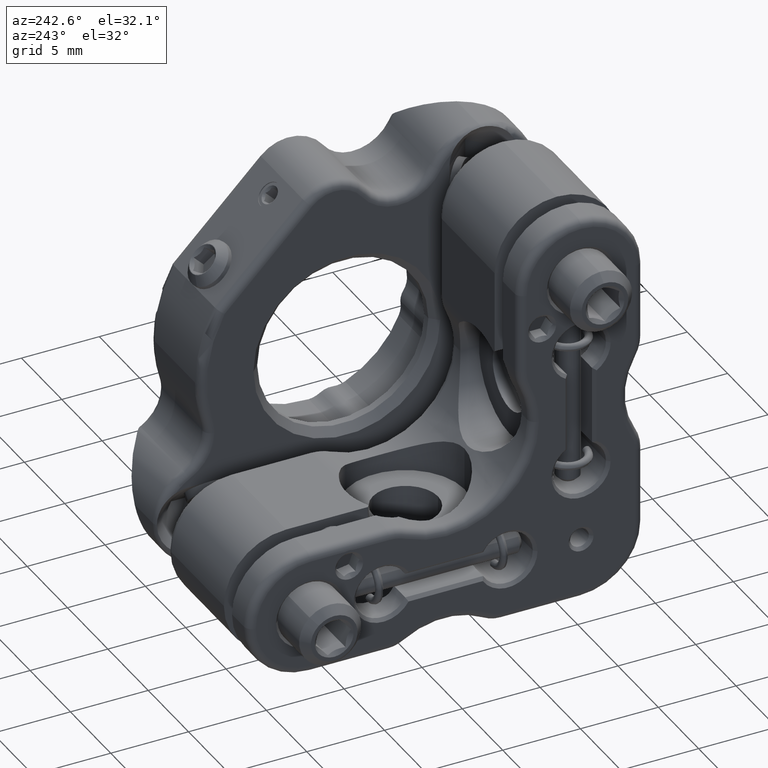
[diagram: clean part render]
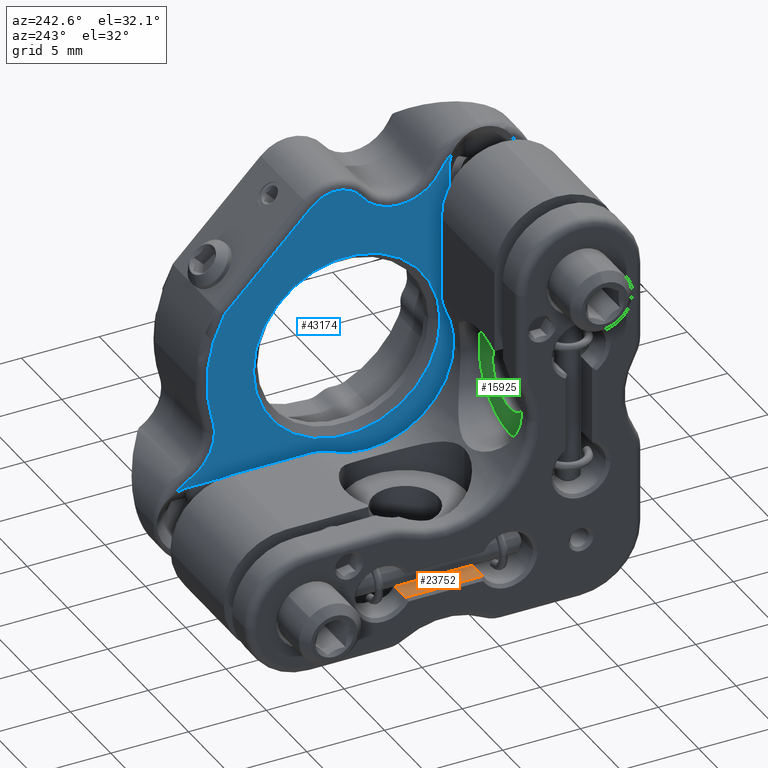
[diagram: same view with three faces highlighted in distinct colors, each labeled with its STEP entity id]
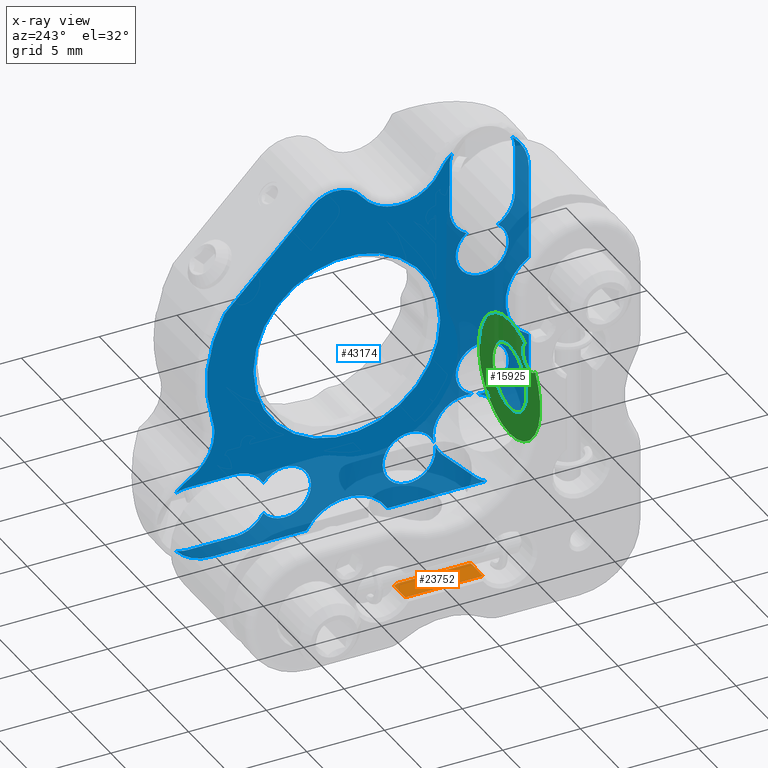
[diagram: x-ray of the same camera — body ghosted, the three highlighted faces saturated]
A machine part, auxiliary view with three faces highlighted in distinct colors.
The next image is the same camera in x-ray (body ghosted, the three faces saturated) — at least one of them is partly hidden behind the body in this view.
Their STEP definitions:

[orange] entity #23752 — the highlighted planar face has unit normal (0, 0, 1).
#1083 = VERTEX_POINT ( 'NONE', #17699 ) ;
#1209 = CARTESIAN_POINT ( 'NONE',  ( -18.29999999999999716, 12.69999999999998685, -3.894749130262324499 ) ) ;
#2151 = EDGE_CURVE ( 'NONE', #1083, #15910, #10487, .T. ) ;
#2965 = VECTOR ( 'NONE', #7365, 1000.000000000000000 ) ;
#4188 = DIRECTION ( 'NONE',  ( -1.000000000000000000, 0.0000000000000000000, 0.0000000000000000000 ) ) ;
#4244 = ORIENTED_EDGE ( 'NONE', *, *, #34498, .T. ) ;
#6408 = EDGE_CURVE ( 'NONE', #8164, #24269, #20308, .T. ) ;
#7134 = CARTESIAN_POINT ( 'NONE',  ( -18.29999999999999716, 15.19999999999994245, -3.894749130262326275 ) ) ;
#7267 = ORIENTED_EDGE ( 'NONE', *, *, #2151, .T. ) ;
#7365 = DIRECTION ( 'NONE',  ( 0.0000000000000000000, 1.000000000000000000, -6.033280553076514530E-16 ) ) ;
#7694 = CARTESIAN_POINT ( 'NONE',  ( -16.00000000000000000, 15.19999999999994245, -3.894749130262326275 ) ) ;
#8164 = VERTEX_POINT ( 'NONE', #15592 ) ;
#8959 = FACE_OUTER_BOUND ( 'NONE', #22383, .T. ) ;
#10142 = CARTESIAN_POINT ( 'NONE',  ( -16.75000000000000000, 14.90250628144670308, -3.894749130262326275 ) ) ;
#10477 = DIRECTION ( 'NONE',  ( -1.000000000000000000, 0.0000000000000000000, 0.0000000000000000000 ) ) ;
#10487 = LINE ( 'NONE', #7694, #31275 ) ;
#11147 = DIRECTION ( 'NONE',  ( 0.0000000000000000000, -1.000000000000000000, 6.033280553076514530E-16 ) ) ;
#13027 = VECTOR ( 'NONE', #4188, 1000.000000000000000 ) ;
#14611 = VERTEX_POINT ( 'NONE', #10142 ) ;
#15592 = CARTESIAN_POINT ( 'NONE',  ( -16.75000000000000000, 10.20000000000004015, -3.894749130262322723 ) ) ;
#15619 = LINE ( 'NONE', #1209, #39986 ) ;
#15910 = VERTEX_POINT ( 'NONE', #7134 ) ;
#16468 = CARTESIAN_POINT ( 'NONE',  ( -16.00000000000000000, 15.40000000000001457, -3.894749130262326275 ) ) ;
#16977 = CARTESIAN_POINT ( 'NONE',  ( -16.75000000000000000, 15.19999999999994245, -3.894749130262326275 ) ) ;
#17079 = AXIS2_PLACEMENT_3D ( 'NONE', #16468, #39661, #39516 ) ;
#17699 = CARTESIAN_POINT ( 'NONE',  ( -16.87749643873919680, 15.19999999999994245, -3.894749130262326275 ) ) ;
#19145 = CIRCLE ( 'NONE', #17079, 0.9000000000000014655 ) ;
#20308 = LINE ( 'NONE', #41237, #13027 ) ;
#20567 = CARTESIAN_POINT ( 'NONE',  ( -16.00000000000000000, 12.69999999999998685, -3.894749130262324499 ) ) ;
#21001 = DIRECTION ( 'NONE',  ( 0.0000000000000000000, 6.033280553076514530E-16, 1.000000000000000000 ) ) ;
#22383 = EDGE_LOOP ( 'NONE', ( #7267, #34028, #35099, #4244, #34453 ) ) ;
#22608 = AXIS2_PLACEMENT_3D ( 'NONE', #20567, #21001, #24316 ) ;
#23752 = ADVANCED_FACE ( 'NONE', ( #8959 ), #40422, .T. ) ;
#24269 = VERTEX_POINT ( 'NONE', #28572 ) ;
#24316 = DIRECTION ( 'NONE',  ( 0.0000000000000000000, 1.000000000000000000, -6.033280553076514530E-16 ) ) ;
#28572 = CARTESIAN_POINT ( 'NONE',  ( -18.29999999999999716, 10.20000000000004015, -3.894749130262322723 ) ) ;
#29525 = LINE ( 'NONE', #16977, #2965 ) ;
#31275 = VECTOR ( 'NONE', #10477, 1000.000000000000000 ) ;
#32125 = EDGE_CURVE ( 'NONE', #15910, #24269, #15619, .T. ) ;
#34028 = ORIENTED_EDGE ( 'NONE', *, *, #32125, .T. ) ;
#34453 = ORIENTED_EDGE ( 'NONE', *, *, #34807, .T. ) ;
#34498 = EDGE_CURVE ( 'NONE', #8164, #14611, #29525, .T. ) ;
#34807 = EDGE_CURVE ( 'NONE', #14611, #1083, #19145, .T. ) ;
#35099 = ORIENTED_EDGE ( 'NONE', *, *, #6408, .F. ) ;
#39516 = DIRECTION ( 'NONE',  ( 0.0000000000000000000, 1.000000000000000000, -4.818676322157789486E-16 ) ) ;
#39661 = DIRECTION ( 'NONE',  ( -0.0000000000000000000, -6.033280553076514530E-16, -1.000000000000000000 ) ) ;
#39986 = VECTOR ( 'NONE', #11147, 1000.000000000000000 ) ;
#40422 = PLANE ( 'NONE',  #22608 ) ;
#41237 = CARTESIAN_POINT ( 'NONE',  ( -16.00000000000000000, 10.20000000000004015, -3.894749130262322723 ) ) ;

[blue] entity #43174 — the highlighted planar face has unit normal (-1, -0, -0).
#38 = CARTESIAN_POINT ( 'NONE',  ( -6.236038969321080039, 3.999999999999989786, -6.094749130262418824 ) ) ;
#205 = CARTESIAN_POINT ( 'NONE',  ( -6.236038969321080039, 3.999999999999993339, 15.80525086973758420 ) ) ;
#333 = CARTESIAN_POINT ( 'NONE',  ( -6.236038969321080039, 22.89999999999999147, -5.194749130262419357 ) ) ;
#525 = CARTESIAN_POINT ( 'NONE',  ( -6.236038969321080039, 3.999999999999989786, -3.094749130262419712 ) ) ;
#673 = EDGE_CURVE ( 'NONE', #13384, #29270, #17820, .T. ) ;
#771 = DIRECTION ( 'NONE',  ( 0.0000000000000000000, 1.000000000000000000, -1.275531967630004999E-16 ) ) ;
#1018 = EDGE_CURVE ( 'NONE', #16279, #21565, #25088, .T. ) ;
#1031 = DIRECTION ( 'NONE',  ( -1.000000000000000000, 4.732321137588042523E-23, -5.194348294811429819E-23 ) ) ;
#1224 = CARTESIAN_POINT ( 'NONE',  ( -6.236038969321080039, 2.939339828220167039, -4.155409302042240682 ) ) ;
#1459 = CARTESIAN_POINT ( 'NONE',  ( -6.236038969321080039, 10.40000000000002345, -3.094749130262442360 ) ) ;
#1511 = CARTESIAN_POINT ( 'NONE',  ( -6.236038969321080039, 7.000000000000024869, -3.094749130262442360 ) ) ;
#1584 = CARTESIAN_POINT ( 'NONE',  ( -6.236038969321080039, 0.9999999999999922284, 8.203327081090897366 ) ) ;
#1620 = FACE_BOUND ( 'NONE', #17452, .T. ) ;
#1781 = CARTESIAN_POINT ( 'NONE',  ( -6.236038969321080039, 11.73719559782388799, 15.36208309023906438 ) ) ;
#2061 = DIRECTION ( 'NONE',  ( 0.0000000000000000000, -4.081702296416016786E-15, 1.000000000000000000 ) ) ;
#2092 = EDGE_CURVE ( 'NONE', #27225, #41672, #5243, .T. ) ;
#2099 = CIRCLE ( 'NONE', #31736, 1.700000000000000178 ) ;
#2113 = CIRCLE ( 'NONE', #33619, 2.100000000000002309 ) ;
#2227 = ORIENTED_EDGE ( 'NONE', *, *, #23580, .F. ) ;
#2238 = DIRECTION ( 'NONE',  ( 0.0000000000000000000, -1.000000000000000000, 1.156482317317871133E-15 ) ) ;
#2437 = ORIENTED_EDGE ( 'NONE', *, *, #8718, .T. ) ;
#2500 = ORIENTED_EDGE ( 'NONE', *, *, #5935, .F. ) ;
#2696 = CIRCLE ( 'NONE', #8897, 1.700000000000000178 ) ;
#2697 = VERTEX_POINT ( 'NONE', #30588 ) ;
#2986 = CARTESIAN_POINT ( 'NONE',  ( -6.236038969321080039, 8.700000000000024158, -3.094749130262442360 ) ) ;
#3078 = DIRECTION ( 'NONE',  ( -1.000000000000000000, 4.732321137588042523E-23, -5.194348294811429819E-23 ) ) ;
#3111 = CARTESIAN_POINT ( 'NONE',  ( -6.236038969321080039, 7.035948388469489778, -2.746996007828387043 ) ) ;
#3232 = DIRECTION ( 'NONE',  ( 0.0000000000000000000, -1.000000000000000000, 0.0000000000000000000 ) ) ;
#3235 = LINE ( 'NONE', #30919, #31852 ) ;
#3749 = DIRECTION ( 'NONE',  ( 0.0000000000000000000, -1.000000000000000000, 0.0000000000000000000 ) ) ;
#3771 = CIRCLE ( 'NONE', #6441, 1.700000000000000178 ) ;
#3845 = DIRECTION ( 'NONE',  ( -1.892155618894303299E-25, 0.7071067811865476838, 0.7071067811865473507 ) ) ;
#4053 = VERTEX_POINT ( 'NONE', #40470 ) ;
#4122 = EDGE_CURVE ( 'NONE', #21380, #41069, #5207, .T. ) ;
#4128 = CARTESIAN_POINT ( 'NONE',  ( -6.236038969321080039, 3.999999999999980904, 1.605250869737584907 ) ) ;
#4129 = VERTEX_POINT ( 'NONE', #38 ) ;
#4148 = ORIENTED_EDGE ( 'NONE', *, *, #25639, .T. ) ;
#4161 = DIRECTION ( 'NONE',  ( 0.0000000000000000000, -1.000000000000000000, 0.0000000000000000000 ) ) ;
#4160 = CIRCLE ( 'NONE', #28466, 3.000000000000000888 ) ;
#4184 = AXIS2_PLACEMENT_3D ( 'NONE', #37850, #7655, #17562 ) ;
#4310 = DIRECTION ( 'NONE',  ( 0.0000000000000000000, -1.000000000000000000, 0.0000000000000000000 ) ) ;
#4417 = DIRECTION ( 'NONE',  ( -1.000000000000000000, 4.732321137588042523E-23, -5.194348294811429819E-23 ) ) ;
#4443 = DIRECTION ( 'NONE',  ( 1.000000000000000000, -4.732321137588042523E-23, 5.194348294811429819E-23 ) ) ;
#4694 = EDGE_CURVE ( 'NONE', #26770, #2697, #28664, .T. ) ;
#4838 = CIRCLE ( 'NONE', #16401, 3.000000000000012879 ) ;
#4856 = CARTESIAN_POINT ( 'NONE',  ( -6.236038969321080039, 3.575735931288060776, -0.5491647179908443199 ) ) ;
#4966 = ORIENTED_EDGE ( 'NONE', *, *, #17865, .T. ) ;
#5035 = CARTESIAN_POINT ( 'NONE',  ( -6.236038969321080039, 18.69999999999999574, 5.605250869737581354 ) ) ;
#5063 = VECTOR ( 'NONE', #28713, 1000.000000000000000 ) ;
#5071 = CARTESIAN_POINT ( 'NONE',  ( -6.236038969321080039, 22.89999999999999147, -3.094749130262419712 ) ) ;
#5108 = CARTESIAN_POINT ( 'NONE',  ( -6.236038969321080039, 21.39999999999999147, -6.094749130262418824 ) ) ;
#5128 = CARTESIAN_POINT ( 'NONE',  ( -6.236038969321080039, 16.70000000000002416, -3.094749130262414383 ) ) ;
#5159 = CARTESIAN_POINT ( 'NONE',  ( -6.236038969321080039, 3.999999999999989786, -6.094749130262418824 ) ) ;
#5207 = CIRCLE ( 'NONE', #39142, 2.100000000000002309 ) ;
#5243 = CIRCLE ( 'NONE', #34975, 2.100000000000000533 ) ;
#5260 = VERTEX_POINT ( 'NONE', #13998 ) ;
#5284 = VERTEX_POINT ( 'NONE', #17347 ) ;
#5308 = DIRECTION ( 'NONE',  ( 1.000000000000000000, -4.732321137588042523E-23, 5.194348294811429819E-23 ) ) ;
#5428 = DIRECTION ( 'NONE',  ( -1.000000000000000000, 4.732321137588042523E-23, -5.194348294811429819E-23 ) ) ;
#5502 = EDGE_CURVE ( 'NONE', #32221, #8201, #2113, .T. ) ;
#5503 = CARTESIAN_POINT ( 'NONE',  ( -6.236038969321080039, 3.766491574063791425, -6.085647626536873744 ) ) ;
#5573 = EDGE_LOOP ( 'NONE', ( #2500, #22346, #13422, #38571, #38881, #20821, #27600, #16086, #41858, #29172, #5767, #23711, #4966, #11403, #22014, #41730, #6385, #22380, #31500, #12903, #19898, #8206, #25475, #36055, #40781, #6698, #35822, #4148, #10522, #27955, #31416, #35515, #26976, #14814, #2227, #28921, #41097, #17605, #10192, #31267, #29942, #8992, #19973, #7311, #14744, #5631, #36926, #2437 ) ) ;
#5626 = CIRCLE ( 'NONE', #28782, 1.700000000000000178 ) ;
#5631 = ORIENTED_EDGE ( 'NONE', *, *, #31870, .T. ) ;
#5767 = ORIENTED_EDGE ( 'NONE', *, *, #21873, .T. ) ;
#5791 = VERTEX_POINT ( 'NONE', #7299 ) ;
#5935 = EDGE_CURVE ( 'NONE', #35290, #26641, #16140, .T. ) ;
#6101 = CIRCLE ( 'NONE', #11118, 2.107436901077688773 ) ;
#6128 = CARTESIAN_POINT ( 'NONE',  ( -6.236038969321080039, 13.44791708761378501, 14.13134255040340470 ) ) ;
#6139 = CARTESIAN_POINT ( 'NONE',  ( -6.236038969321080039, 0.9999999999999922284, 3.007174658384267119 ) ) ;
#6185 = DIRECTION ( 'NONE',  ( 0.0000000000000000000, -1.000000000000000000, 0.0000000000000000000 ) ) ;
#6337 = CIRCLE ( 'NONE', #30977, 1.700000000000000178 ) ;
#6372 = AXIS2_PLACEMENT_3D ( 'NONE', #34722, #17634, #8162 ) ;
#6385 = ORIENTED_EDGE ( 'NONE', *, *, #30735, .F. ) ;
#6441 = AXIS2_PLACEMENT_3D ( 'NONE', #36553, #26423, #30195 ) ;
#6451 = DIRECTION ( 'NONE',  ( 1.000000000000000000, -4.732321137588042523E-23, 5.194348294811429819E-23 ) ) ;
#6495 = CARTESIAN_POINT ( 'NONE',  ( -6.236038969321080039, 23.67999999999999261, -1.144979913149791084 ) ) ;
#6620 = CARTESIAN_POINT ( 'NONE',  ( -6.236038969321080039, 5.949769217112629960, 16.58525086973757467 ) ) ;
#6669 = DIRECTION ( 'NONE',  ( -1.000000000000000000, 4.732321137588042523E-23, -5.194348294811429819E-23 ) ) ;
#6698 = ORIENTED_EDGE ( 'NONE', *, *, #40085, .F. ) ;
#6760 = CARTESIAN_POINT ( 'NONE',  ( -6.236038969321080039, 5.060660171779810312, -2.034088958482596077 ) ) ;
#6776 = CIRCLE ( 'NONE', #19810, 6.000000000000003553 ) ;
#6899 = VERTEX_POINT ( 'NONE', #35643 ) ;
#7026 = CIRCLE ( 'NONE', #17147, 2.100000000000002309 ) ;
#7188 = DIRECTION ( 'NONE',  ( 2.871516839365768921E-25, -1.000000000000000000, 6.938893903907227145E-17 ) ) ;
#7299 = CARTESIAN_POINT ( 'NONE',  ( -6.236038969321080039, 6.099999999999996092, 15.80525086973758064 ) ) ;
#7311 = ORIENTED_EDGE ( 'NONE', *, *, #38073, .T. ) ;
#7407 = CARTESIAN_POINT ( 'NONE',  ( -6.236038969321080039, 15.29807621135330464, -6.094749130262418824 ) ) ;
#7648 = AXIS2_PLACEMENT_3D ( 'NONE', #35250, #25005, #18192 ) ;
#7655 = DIRECTION ( 'NONE',  ( -1.000000000000000000, 4.732321137588042523E-23, -5.194348294811429819E-23 ) ) ;
#7692 = AXIS2_PLACEMENT_3D ( 'NONE', #20614, #17413, #27150 ) ;
#7720 = EDGE_CURVE ( 'NONE', #26309, #13288, #9831, .T. ) ;
#7906 = DIRECTION ( 'NONE',  ( 0.0000000000000000000, -4.081702296416016786E-15, 1.000000000000000000 ) ) ;
#8162 = DIRECTION ( 'NONE',  ( 0.0000000000000000000, -1.000000000000000000, 0.0000000000000000000 ) ) ;
#8201 = VERTEX_POINT ( 'NONE', #5503 ) ;
#8206 = ORIENTED_EDGE ( 'NONE', *, *, #15869, .F. ) ;
#8224 = CARTESIAN_POINT ( 'NONE',  ( -6.236038969321080039, 24.20882850452728263, 2.207182822540726619 ) ) ;
#8252 = EDGE_CURVE ( 'NONE', #5260, #16279, #2696, .T. ) ;
#8360 = ORIENTED_EDGE ( 'NONE', *, *, #29594, .T. ) ;
#8387 = VERTEX_POINT ( 'NONE', #5035 ) ;
#8492 = DIRECTION ( 'NONE',  ( -1.000000000000000000, 4.732321137588042523E-23, -5.194348294811429819E-23 ) ) ;
#8718 = EDGE_CURVE ( 'NONE', #26501, #26641, #4838, .T. ) ;
#8824 = VERTEX_POINT ( 'NONE', #40102 ) ;
#8849 = DIRECTION ( 'NONE',  ( 1.892155618894302840E-25, -0.7071067811865474617, -0.7071067811865474617 ) ) ;
#8897 = AXIS2_PLACEMENT_3D ( 'NONE', #39036, #42240, #9142 ) ;
#8992 = ORIENTED_EDGE ( 'NONE', *, *, #24365, .T. ) ;
#9034 = DIRECTION ( 'NONE',  ( 0.0000000000000000000, -1.000000000000000000, 0.0000000000000000000 ) ) ;
#9081 = DIRECTION ( 'NONE',  ( -1.000000000000000000, 4.732321137588042523E-23, -5.194348294811429819E-23 ) ) ;
#9142 = DIRECTION ( 'NONE',  ( 0.0000000000000000000, 3.061276722312012195E-15, -1.000000000000000000 ) ) ;
#9631 = AXIS2_PLACEMENT_3D ( 'NONE', #19336, #38775, #29187 ) ;
#9764 = CARTESIAN_POINT ( 'NONE',  ( -6.236038969321080039, 0.9999999999999940048, 14.30525086973758242 ) ) ;
#9800 = DIRECTION ( 'NONE',  ( 0.0000000000000000000, -1.000000000000000000, 0.0000000000000000000 ) ) ;
#9831 = CIRCLE ( 'NONE', #33355, 2.999999999999999112 ) ;
#9864 = DIRECTION ( 'NONE',  ( 0.0000000000000000000, 3.061276722312012195E-15, -1.000000000000000000 ) ) ;
#9961 = CARTESIAN_POINT ( 'NONE',  ( -6.236038969321080039, 5.060660171779810312, -2.034088958482596077 ) ) ;
#9992 = AXIS2_PLACEMENT_3D ( 'NONE', #38031, #11904, #21650 ) ;
#10192 = ORIENTED_EDGE ( 'NONE', *, *, #22881, .F. ) ;
#10232 = CARTESIAN_POINT ( 'NONE',  ( -6.236038969321080039, 5.016658128379437365, 10.96775086973757851 ) ) ;
#10280 = DIRECTION ( 'NONE',  ( -1.000000000000000000, 4.732321137588042523E-23, -5.194348294811429819E-23 ) ) ;
#10372 = VERTEX_POINT ( 'NONE', #38572 ) ;
#10471 = EDGE_CURVE ( 'NONE', #32319, #41897, #6101, .T. ) ;
#10522 = ORIENTED_EDGE ( 'NONE', *, *, #25905, .T. ) ;
#10528 = VECTOR ( 'NONE', #25538, 1000.000000000000000 ) ;
#10635 = CIRCLE ( 'NONE', #6372, 2.100000000000000977 ) ;
#10942 = VERTEX_POINT ( 'NONE', #32985 ) ;
#10989 = VERTEX_POINT ( 'NONE', #29977 ) ;
#11118 = AXIS2_PLACEMENT_3D ( 'NONE', #6128, #9081, #22433 ) ;
#11403 = ORIENTED_EDGE ( 'NONE', *, *, #5502, .F. ) ;
#11889 = EDGE_CURVE ( 'NONE', #28781, #4129, #18613, .T. ) ;
#11904 = DIRECTION ( 'NONE',  ( -1.000000000000000000, -2.871516839365804737E-25, -5.194348294811429231E-23 ) ) ;
#12147 = EDGE_CURVE ( 'NONE', #41672, #20501, #18085, .T. ) ;
#12435 = CARTESIAN_POINT ( 'NONE',  ( -6.236038969321080039, 1.899999999999993694, 12.80525086973758420 ) ) ;
#12587 = AXIS2_PLACEMENT_3D ( 'NONE', #5128, #8492, #2061 ) ;
#12739 = DIRECTION ( 'NONE',  ( 0.0000000000000000000, -1.000000000000000000, 0.0000000000000000000 ) ) ;
#12782 = CARTESIAN_POINT ( 'NONE',  ( -6.236038969321080039, 22.80441425226362995, -0.4437831538608421611 ) ) ;
#12877 = CARTESIAN_POINT ( 'NONE',  ( -6.236038969321080039, 12.69999999999999041, 5.605250869737581354 ) ) ;
#12903 = ORIENTED_EDGE ( 'NONE', *, *, #28125, .F. ) ;
#13091 = VECTOR ( 'NONE', #39846, 1000.000000000000000 ) ;
#13206 = CARTESIAN_POINT ( 'NONE',  ( -6.236038969321080039, 2.939339828220167039, -4.155409302042240682 ) ) ;
#13209 = LINE ( 'NONE', #29015, #23635 ) ;
#13249 = CIRCLE ( 'NONE', #36750, 1.700000000000000178 ) ;
#13288 = VERTEX_POINT ( 'NONE', #5108 ) ;
#13384 = VERTEX_POINT ( 'NONE', #38239 ) ;
#13422 = ORIENTED_EDGE ( 'NONE', *, *, #18391, .F. ) ;
#13440 = CARTESIAN_POINT ( 'NONE',  ( -6.236038969321080039, 22.89999999999999147, -5.194749130262419357 ) ) ;
#13634 = AXIS2_PLACEMENT_3D ( 'NONE', #23672, #30044, #40368 ) ;
#13862 = DIRECTION ( 'NONE',  ( 1.000000000000000000, -4.732321137588042523E-23, 5.194348294811429819E-23 ) ) ;
#13873 = DIRECTION ( 'NONE',  ( 0.0000000000000000000, -1.000000000000000000, 0.0000000000000000000 ) ) ;
#13998 = CARTESIAN_POINT ( 'NONE',  ( -6.236038969321080039, 7.109671817572578156, -2.494035993917798955 ) ) ;
#14039 = AXIS2_PLACEMENT_3D ( 'NONE', #43049, #3078, #9800 ) ;
#14744 = ORIENTED_EDGE ( 'NONE', *, *, #673, .T. ) ;
#14779 = CARTESIAN_POINT ( 'NONE',  ( -6.236038969321080039, 5.699999999999980638, 1.605250869737584907 ) ) ;
#14814 = ORIENTED_EDGE ( 'NONE', *, *, #2092, .F. ) ;
#14847 = PLANE ( 'NONE',  #9992 ) ;
#14871 = DIRECTION ( 'NONE',  ( -1.000000000000000000, 4.732321137588042523E-23, -5.194348294811429819E-23 ) ) ;
#14961 = DIRECTION ( 'NONE',  ( 1.000000000000000000, -4.732321137588042523E-23, 5.194348294811429819E-23 ) ) ;
#15221 = EDGE_CURVE ( 'NONE', #25859, #8824, #36119, .T. ) ;
#15545 = CIRCLE ( 'NONE', #27407, 6.000000000000003553 ) ;
#15869 = EDGE_CURVE ( 'NONE', #4053, #37429, #30960, .T. ) ;
#16086 = ORIENTED_EDGE ( 'NONE', *, *, #40363, .F. ) ;
#16140 = CIRCLE ( 'NONE', #13634, 2.100000000000000977 ) ;
#16279 = VERTEX_POINT ( 'NONE', #1459 ) ;
#16401 = AXIS2_PLACEMENT_3D ( 'NONE', #23257, #40401, #33239 ) ;
#16507 = DIRECTION ( 'NONE',  ( 0.0000000000000000000, -1.000000000000000000, 0.0000000000000000000 ) ) ;
#16741 = DIRECTION ( 'NONE',  ( 0.0000000000000000000, -1.000000000000000000, 0.0000000000000000000 ) ) ;
#16802 = AXIS2_PLACEMENT_3D ( 'NONE', #22048, #5308, #2238 ) ;
#16834 = DIRECTION ( 'NONE',  ( -1.000000000000000000, 4.732321137588042523E-23, -5.194348294811429819E-23 ) ) ;
#16913 = CARTESIAN_POINT ( 'NONE',  ( -6.236038969321080039, 5.699999999999980638, 9.605250869737586683 ) ) ;
#17068 = CARTESIAN_POINT ( 'NONE',  ( -6.236038969321080039, -0.5000000000000125455, 5.605250869737582242 ) ) ;
#17147 = AXIS2_PLACEMENT_3D ( 'NONE', #1224, #31435, #41599 ) ;
#17261 = VERTEX_POINT ( 'NONE', #1584 ) ;
#17304 = DIRECTION ( 'NONE',  ( -1.956047010049877356E-26, -3.585095183685400671E-16, -1.000000000000000000 ) ) ;
#17347 = CARTESIAN_POINT ( 'NONE',  ( -6.236038969321080039, 19.89999999999999503, -0.9947491302624202891 ) ) ;
#17413 = DIRECTION ( 'NONE',  ( -1.000000000000000000, 4.732321137588042523E-23, -5.194348294811429819E-23 ) ) ;
#17452 = EDGE_LOOP ( 'NONE', ( #8360, #21312 ) ) ;
#17494 = CARTESIAN_POINT ( 'NONE',  ( -6.236038969321080039, 12.69999999999998863, -7.594749130262422376 ) ) ;
#17559 = EDGE_CURVE ( 'NONE', #42500, #32221, #13209, .T. ) ;
#17562 = DIRECTION ( 'NONE',  ( 0.0000000000000000000, -1.000000000000000000, 0.0000000000000000000 ) ) ;
#17605 = ORIENTED_EDGE ( 'NONE', *, *, #35376, .F. ) ;
#17634 = DIRECTION ( 'NONE',  ( -1.000000000000000000, 4.732321137588042523E-23, -5.194348294811429819E-23 ) ) ;
#17820 = CIRCLE ( 'NONE', #9631, 8.999999999999996447 ) ;
#17865 = EDGE_CURVE ( 'NONE', #4129, #8201, #24700, .T. ) ;
#18085 = LINE ( 'NONE', #12435, #5063 ) ;
#18191 = DIRECTION ( 'NONE',  ( 0.0000000000000000000, -1.000000000000000000, 0.0000000000000000000 ) ) ;
#18192 = DIRECTION ( 'NONE',  ( 0.0000000000000000000, -1.000000000000000000, 0.0000000000000000000 ) ) ;
#18246 = AXIS2_PLACEMENT_3D ( 'NONE', #4128, #4417, #771 ) ;
#18391 = EDGE_CURVE ( 'NONE', #2697, #5284, #10635, .T. ) ;
#18484 = DIRECTION ( 'NONE',  ( 0.0000000000000000000, -1.000000000000000000, 0.0000000000000000000 ) ) ;
#18613 = LINE ( 'NONE', #5159, #20146 ) ;
#18786 = AXIS2_PLACEMENT_3D ( 'NONE', #17068, #33115, #36914 ) ;
#19197 = DIRECTION ( 'NONE',  ( -1.000000000000000000, 4.732321137588042523E-23, -5.194348294811429819E-23 ) ) ;
#19296 = AXIS2_PLACEMENT_3D ( 'NONE', #20040, #35950, #32882 ) ;
#19336 = CARTESIAN_POINT ( 'NONE',  ( -6.236038969321080039, 12.69999999999999396, 5.605250869737588459 ) ) ;
#19427 = CIRCLE ( 'NONE', #12587, 1.699999999999999956 ) ;
#19487 = EDGE_CURVE ( 'NONE', #17261, #30350, #41006, .T. ) ;
#19594 = VERTEX_POINT ( 'NONE', #29897 ) ;
#19636 = EDGE_CURVE ( 'NONE', #42146, #28722, #40506, .T. ) ;
#19810 = AXIS2_PLACEMENT_3D ( 'NONE', #27744, #4443, #4161 ) ;
#19861 = LINE ( 'NONE', #35232, #10528 ) ;
#19898 = ORIENTED_EDGE ( 'NONE', *, *, #36025, .F. ) ;
#19973 = ORIENTED_EDGE ( 'NONE', *, *, #10471, .T. ) ;
#20014 = CARTESIAN_POINT ( 'NONE',  ( -6.236038969321080039, 5.060660171779810312, -2.034088958482596077 ) ) ;
#20040 = CARTESIAN_POINT ( 'NONE',  ( -6.236038969321080039, 19.89999999999999147, -3.094749130262419712 ) ) ;
#20143 = AXIS2_PLACEMENT_3D ( 'NONE', #6760, #40189, #23649 ) ;
#20146 = VECTOR ( 'NONE', #31333, 1000.000000000000000 ) ;
#20194 = CARTESIAN_POINT ( 'NONE',  ( -6.236038969321080039, 4.347753122433801742, -0.05880074179299629722 ) ) ;
#20258 = DIRECTION ( 'NONE',  ( -1.000000000000000000, 4.732321137588042523E-23, -5.194348294811429819E-23 ) ) ;
#20460 = CARTESIAN_POINT ( 'NONE',  ( -6.236038969321080039, 1.454415587728416837, -2.670485061550488926 ) ) ;
#20501 = VERTEX_POINT ( 'NONE', #42747 ) ;
#20614 = CARTESIAN_POINT ( 'NONE',  ( -6.236038969321080039, 8.700000000000024158, -3.094749130262442360 ) ) ;
#20737 = DIRECTION ( 'NONE',  ( -1.000000000000000000, 4.732321137588042523E-23, -5.194348294811429819E-23 ) ) ;
#20821 = ORIENTED_EDGE ( 'NONE', *, *, #34086, .F. ) ;
#21237 = DIRECTION ( 'NONE',  ( 2.871516839365768921E-25, -1.000000000000000000, 6.938893903907227145E-17 ) ) ;
#21312 = ORIENTED_EDGE ( 'NONE', *, *, #35185, .T. ) ;
#21380 = VERTEX_POINT ( 'NONE', #4856 ) ;
#21484 = AXIS2_PLACEMENT_3D ( 'NONE', #37186, #20258, #40707 ) ;
#21565 = VERTEX_POINT ( 'NONE', #1511 ) ;
#21636 = EDGE_CURVE ( 'NONE', #10372, #26770, #19427, .T. ) ;
#21650 = DIRECTION ( 'NONE',  ( 2.871516839365768921E-25, -1.000000000000000000, 6.938893903907227145E-17 ) ) ;
#21672 = CARTESIAN_POINT ( 'NONE',  ( -6.236038969321080039, 3.999999999999993339, 12.80525086973758242 ) ) ;
#21721 = CARTESIAN_POINT ( 'NONE',  ( -6.236038969321080039, 4.424264068711918796, -5.640333542533992883 ) ) ;
#21873 = EDGE_CURVE ( 'NONE', #38259, #28781, #29274, .T. ) ;
#22014 = ORIENTED_EDGE ( 'NONE', *, *, #17559, .F. ) ;
#22048 = CARTESIAN_POINT ( 'NONE',  ( -6.236038969321080039, 9.301931952803137449, 17.11407937426487536 ) ) ;
#22089 = VERTEX_POINT ( 'NONE', #30829 ) ;
#22215 = CIRCLE ( 'NONE', #7648, 2.100000000000000977 ) ;
#22288 = CIRCLE ( 'NONE', #19296, 2.100000000000000977 ) ;
#22346 = ORIENTED_EDGE ( 'NONE', *, *, #27870, .F. ) ;
#22380 = ORIENTED_EDGE ( 'NONE', *, *, #1018, .F. ) ;
#22428 = CARTESIAN_POINT ( 'NONE',  ( -6.236038969321080039, 14.93810001128858467, 15.62152547407820080 ) ) ;
#22433 = DIRECTION ( 'NONE',  ( 0.0000000000000000000, -1.000000000000000000, 0.0000000000000000000 ) ) ;
#22445 = LINE ( 'NONE', #6139, #13091 ) ;
#22672 = EDGE_CURVE ( 'NONE', #23366, #19594, #3771, .T. ) ;
#22845 = VERTEX_POINT ( 'NONE', #40796 ) ;
#22881 = EDGE_CURVE ( 'NONE', #5791, #10942, #3235, .T. ) ;
#23245 = CIRCLE ( 'NONE', #23747, 3.000000000000002665 ) ;
#23257 = CARTESIAN_POINT ( 'NONE',  ( -6.236038969321080039, 21.39999999999998082, -3.094749130262426817 ) ) ;
#23366 = VERTEX_POINT ( 'NONE', #16913 ) ;
#23580 = EDGE_CURVE ( 'NONE', #19594, #27225, #6337, .T. ) ;
#23635 = VECTOR ( 'NONE', #8849, 1000.000000000000114 ) ;
#23649 = DIRECTION ( 'NONE',  ( 0.0000000000000000000, -1.000000000000000000, 0.0000000000000000000 ) ) ;
#23672 = CARTESIAN_POINT ( 'NONE',  ( -6.236038969321080039, 22.89999999999999147, -3.094749130262419712 ) ) ;
#23687 = AXIS2_PLACEMENT_3D ( 'NONE', #20014, #43044, #3232 ) ;
#23708 = VECTOR ( 'NONE', #7188, 1000.000000000000000 ) ;
#23711 = ORIENTED_EDGE ( 'NONE', *, *, #11889, .T. ) ;
#23744 = DIRECTION ( 'NONE',  ( 0.0000000000000000000, -1.000000000000000000, 0.0000000000000000000 ) ) ;
#23747 = AXIS2_PLACEMENT_3D ( 'NONE', #28189, #34236, #41370 ) ;
#23816 = AXIS2_PLACEMENT_3D ( 'NONE', #5071, #25289, #18484 ) ;
#24264 = CARTESIAN_POINT ( 'NONE',  ( -6.236038969321080039, 2.983341871620536434, 10.96775086973758739 ) ) ;
#24325 = CIRCLE ( 'NONE', #18246, 1.700000000000000178 ) ;
#24365 = EDGE_CURVE ( 'NONE', #10989, #32319, #28725, .T. ) ;
#24559 = CARTESIAN_POINT ( 'NONE',  ( -6.236038969321080039, 15.29807621135330464, -6.094749130262418824 ) ) ;
#24700 = CIRCLE ( 'NONE', #4184, 3.000000000000000888 ) ;
#24721 = CARTESIAN_POINT ( 'NONE',  ( -6.236038969321080039, 21.20882850452727908, 2.207182822540726619 ) ) ;
#24771 = CARTESIAN_POINT ( 'NONE',  ( -6.236038969321080039, 6.545584412271561625, -3.519013198974348722 ) ) ;
#25005 = DIRECTION ( 'NONE',  ( -1.000000000000000000, 4.732321137588042523E-23, -5.194348294811429819E-23 ) ) ;
#25088 = CIRCLE ( 'NONE', #7692, 1.700000000000000178 ) ;
#25289 = DIRECTION ( 'NONE',  ( -1.000000000000000000, 4.732321137588042523E-23, -5.194348294811429819E-23 ) ) ;
#25397 = CIRCLE ( 'NONE', #14039, 2.100000000000000533 ) ;
#25475 = ORIENTED_EDGE ( 'NONE', *, *, #29975, .F. ) ;
#25538 = DIRECTION ( 'NONE',  ( -2.871516839365768921E-25, 1.000000000000000000, -3.585095183685403136E-16 ) ) ;
#25639 = EDGE_CURVE ( 'NONE', #28722, #6899, #22445, .T. ) ;
#25859 = VERTEX_POINT ( 'NONE', #13440 ) ;
#25874 = DIRECTION ( 'NONE',  ( -1.000000000000000000, 4.732321137588042523E-23, -5.194348294811429819E-23 ) ) ;
#25905 = EDGE_CURVE ( 'NONE', #6899, #17261, #36427, .T. ) ;
#25957 = CIRCLE ( 'NONE', #20143, 2.100000000000002309 ) ;
#26084 = CIRCLE ( 'NONE', #23687, 2.100000000000002309 ) ;
#26271 = DIRECTION ( 'NONE',  ( 1.956047010049881661E-26, 2.115793878896302246E-16, 1.000000000000000000 ) ) ;
#26292 = CIRCLE ( 'NONE', #23816, 2.100000000000000977 ) ;
#26309 = VERTEX_POINT ( 'NONE', #33384 ) ;
#26423 = DIRECTION ( 'NONE',  ( -1.000000000000000000, 4.732321137588042523E-23, -5.194348294811429819E-23 ) ) ;
#26501 = VERTEX_POINT ( 'NONE', #12782 ) ;
#26641 = VERTEX_POINT ( 'NONE', #6495 ) ;
#26770 = VERTEX_POINT ( 'NONE', #40516 ) ;
#26976 = ORIENTED_EDGE ( 'NONE', *, *, #12147, .F. ) ;
#27150 = DIRECTION ( 'NONE',  ( 0.0000000000000000000, 3.061276722312012195E-15, -1.000000000000000000 ) ) ;
#27225 = VERTEX_POINT ( 'NONE', #24264 ) ;
#27350 = EDGE_CURVE ( 'NONE', #13288, #38259, #41196, .T. ) ;
#27407 = AXIS2_PLACEMENT_3D ( 'NONE', #12877, #6451, #12739 ) ;
#27558 = CARTESIAN_POINT ( 'NONE',  ( -6.236038969321080039, 16.70000000000002416, -3.094749130262414383 ) ) ;
#27600 = ORIENTED_EDGE ( 'NONE', *, *, #15221, .F. ) ;
#27744 = CARTESIAN_POINT ( 'NONE',  ( -6.236038969321080039, 12.69999999999999041, 5.605250869737581354 ) ) ;
#27870 = EDGE_CURVE ( 'NONE', #5284, #35290, #19861, .T. ) ;
#27955 = ORIENTED_EDGE ( 'NONE', *, *, #19487, .T. ) ;
#28125 = EDGE_CURVE ( 'NONE', #30187, #5260, #26084, .T. ) ;
#28189 = CARTESIAN_POINT ( 'NONE',  ( -6.236038969321080039, 24.20882850452728263, 2.207182822540726619 ) ) ;
#28442 = LINE ( 'NONE', #38368, #40386 ) ;
#28466 = AXIS2_PLACEMENT_3D ( 'NONE', #42125, #25874, #9034 ) ;
#28664 = CIRCLE ( 'NONE', #31905, 1.699999999999999956 ) ;
#28713 = DIRECTION ( 'NONE',  ( 1.956047010049885679E-26, 6.938893903907227145E-17, 1.000000000000000000 ) ) ;
#28722 = VERTEX_POINT ( 'NONE', #29218 ) ;
#28725 = CIRCLE ( 'NONE', #16802, 3.000000000000000888 ) ;
#28781 = VERTEX_POINT ( 'NONE', #36011 ) ;
#28782 = AXIS2_PLACEMENT_3D ( 'NONE', #30172, #10280, #4310 ) ;
#28921 = ORIENTED_EDGE ( 'NONE', *, *, #22672, .F. ) ;
#29015 = CARTESIAN_POINT ( 'NONE',  ( -6.236038969321080039, 4.424264068711918796, -5.640333542533992883 ) ) ;
#29172 = ORIENTED_EDGE ( 'NONE', *, *, #27350, .T. ) ;
#29187 = DIRECTION ( 'NONE',  ( 0.0000000000000000000, -1.000000000000000000, 9.637352644315598941E-17 ) ) ;
#29218 = CARTESIAN_POINT ( 'NONE',  ( -6.236038969321080039, 0.9999999999999904521, -3.094749130262419712 ) ) ;
#29270 = VERTEX_POINT ( 'NONE', #31965 ) ;
#29274 = CIRCLE ( 'NONE', #30403, 3.000000000000000888 ) ;
#29420 = CARTESIAN_POINT ( 'NONE',  ( -6.236038969321080039, 22.89999999999999147, -0.9947491302624211773 ) ) ;
#29594 = EDGE_CURVE ( 'NONE', #22845, #8387, #6776, .T. ) ;
#29632 = CARTESIAN_POINT ( 'NONE',  ( -6.236038969321080039, 21.39999999999999147, -3.094749130262419712 ) ) ;
#29827 = DIRECTION ( 'NONE',  ( -1.000000000000000000, 4.732321137588042523E-23, -5.194348294811429819E-23 ) ) ;
#29831 = AXIS2_PLACEMENT_3D ( 'NONE', #8224, #14961, #41622 ) ;
#29897 = CARTESIAN_POINT ( 'NONE',  ( -6.236038969321080039, 2.299999999999981615, 9.605250869737586683 ) ) ;
#29942 = ORIENTED_EDGE ( 'NONE', *, *, #42108, .T. ) ;
#29975 = EDGE_CURVE ( 'NONE', #41069, #4053, #2099, .T. ) ;
#29977 = CARTESIAN_POINT ( 'NONE',  ( -6.236038969321080039, 6.650965976401560731, 15.70966512200122622 ) ) ;
#30044 = DIRECTION ( 'NONE',  ( -1.000000000000000000, 4.732321137588042523E-23, -5.194348294811429819E-23 ) ) ;
#30172 = CARTESIAN_POINT ( 'NONE',  ( -6.236038969321080039, 3.999999999999980904, 9.605250869737586683 ) ) ;
#30187 = VERTEX_POINT ( 'NONE', #35489 ) ;
#30195 = DIRECTION ( 'NONE',  ( 0.0000000000000000000, -1.000000000000000000, 0.0000000000000000000 ) ) ;
#30350 = VERTEX_POINT ( 'NONE', #9764 ) ;
#30403 = AXIS2_PLACEMENT_3D ( 'NONE', #17494, #13862, #36743 ) ;
#30588 = CARTESIAN_POINT ( 'NONE',  ( -6.236038969321080039, 18.06250000000000711, -2.078091001882944155 ) ) ;
#30680 = CIRCLE ( 'NONE', #29831, 3.000000000000002665 ) ;
#30735 = EDGE_CURVE ( 'NONE', #21565, #41049, #13249, .T. ) ;
#30829 = CARTESIAN_POINT ( 'NONE',  ( -6.236038969321080039, 2.050230782887361158, 16.58525086973757823 ) ) ;
#30919 = CARTESIAN_POINT ( 'NONE',  ( -6.236038969321080039, 6.099999999999995204, 12.80525086973758242 ) ) ;
#30960 = CIRCLE ( 'NONE', #21484, 1.700000000000000178 ) ;
#30977 = AXIS2_PLACEMENT_3D ( 'NONE', #37339, #1031, #13873 ) ;
#31129 = CIRCLE ( 'NONE', #33162, 2.100000000000000977 ) ;
#31267 = ORIENTED_EDGE ( 'NONE', *, *, #36177, .F. ) ;
#31333 = DIRECTION ( 'NONE',  ( 2.871516839365768921E-25, -1.000000000000000000, 6.938893903907227145E-17 ) ) ;
#31416 = ORIENTED_EDGE ( 'NONE', *, *, #32327, .T. ) ;
#31435 = DIRECTION ( 'NONE',  ( -1.000000000000000000, 4.732321137588042523E-23, -5.194348294811429819E-23 ) ) ;
#31470 = VECTOR ( 'NONE', #3845, 1000.000000000000114 ) ;
#31500 = ORIENTED_EDGE ( 'NONE', *, *, #8252, .F. ) ;
#31730 = CARTESIAN_POINT ( 'NONE',  ( -6.236038969321080039, 1.899999999999993694, 12.80525086973758420 ) ) ;
#31736 = AXIS2_PLACEMENT_3D ( 'NONE', #41625, #5428, #38418 ) ;
#31817 = DIRECTION ( 'NONE',  ( -2.168782439919484363E-25, 0.7071067811865450192, -0.7071067811865500152 ) ) ;
#31852 = VECTOR ( 'NONE', #17304, 1000.000000000000000 ) ;
#31870 = EDGE_CURVE ( 'NONE', #29270, #36477, #30680, .T. ) ;
#31905 = AXIS2_PLACEMENT_3D ( 'NONE', #27558, #20737, #7906 ) ;
#31965 = CARTESIAN_POINT ( 'NONE',  ( -6.236038969321080039, 21.33162137839545736, 3.056699834339942079 ) ) ;
#32221 = VERTEX_POINT ( 'NONE', #21721 ) ;
#32319 = VERTEX_POINT ( 'NONE', #1781 ) ;
#32327 = EDGE_CURVE ( 'NONE', #30350, #22089, #4160, .T. ) ;
#32882 = DIRECTION ( 'NONE',  ( 0.0000000000000000000, -1.000000000000000000, 0.0000000000000000000 ) ) ;
#32985 = CARTESIAN_POINT ( 'NONE',  ( -6.236038969321080039, 6.099999999999995204, 12.80525086973758242 ) ) ;
#32994 = LINE ( 'NONE', #20460, #31470 ) ;
#33115 = DIRECTION ( 'NONE',  ( 1.000000000000000000, -4.732321137588042523E-23, 5.194348294811429819E-23 ) ) ;
#33154 = DIRECTION ( 'NONE',  ( -1.000000000000000000, 4.732321137588042523E-23, -5.194348294811429819E-23 ) ) ;
#33162 = AXIS2_PLACEMENT_3D ( 'NONE', #205, #16834, #33482 ) ;
#33215 = EDGE_CURVE ( 'NONE', #41049, #42500, #25957, .T. ) ;
#33239 = DIRECTION ( 'NONE',  ( 0.0000000000000000000, -1.000000000000000000, 0.0000000000000000000 ) ) ;
#33355 = AXIS2_PLACEMENT_3D ( 'NONE', #29632, #6669, #16741 ) ;
#33384 = CARTESIAN_POINT ( 'NONE',  ( -6.236038969321080039, 23.67999999999999261, -5.044518347375048783 ) ) ;
#33482 = DIRECTION ( 'NONE',  ( 0.0000000000000000000, -1.000000000000000000, 0.0000000000000000000 ) ) ;
#33619 = AXIS2_PLACEMENT_3D ( 'NONE', #13206, #39735, #6185 ) ;
#34086 = EDGE_CURVE ( 'NONE', #8824, #10372, #22288, .T. ) ;
#34236 = DIRECTION ( 'NONE',  ( 1.000000000000000000, -4.732321137588042523E-23, 5.194348294811429819E-23 ) ) ;
#34592 = EDGE_CURVE ( 'NONE', #20501, #22089, #31129, .T. ) ;
#34593 = EDGE_CURVE ( 'NONE', #42080, #23366, #5626, .T. ) ;
#34722 = CARTESIAN_POINT ( 'NONE',  ( -6.236038969321080039, 19.89999999999999147, -3.094749130262419712 ) ) ;
#34773 = VECTOR ( 'NONE', #26271, 1000.000000000000000 ) ;
#34975 = AXIS2_PLACEMENT_3D ( 'NONE', #21672, #14871, #18191 ) ;
#35185 = EDGE_CURVE ( 'NONE', #8387, #22845, #15545, .T. ) ;
#35232 = CARTESIAN_POINT ( 'NONE',  ( -6.236038969321080039, 22.89999999999999147, -0.9947491302624211773 ) ) ;
#35250 = CARTESIAN_POINT ( 'NONE',  ( -6.236038969321080039, 3.999999999999993339, 15.80525086973758420 ) ) ;
#35290 = VERTEX_POINT ( 'NONE', #29420 ) ;
#35376 = EDGE_CURVE ( 'NONE', #10942, #42080, #25397, .T. ) ;
#35489 = CARTESIAN_POINT ( 'NONE',  ( -6.236038969321080039, 4.600713136344841026, 0.01492268731022230316 ) ) ;
#35515 = ORIENTED_EDGE ( 'NONE', *, *, #34592, .F. ) ;
#35643 = CARTESIAN_POINT ( 'NONE',  ( -6.236038969321080039, 0.9999999999999922284, 3.007174658384267563 ) ) ;
#35822 = ORIENTED_EDGE ( 'NONE', *, *, #19636, .T. ) ;
#35858 = EDGE_CURVE ( 'NONE', #36477, #26501, #23245, .T. ) ;
#35950 = DIRECTION ( 'NONE',  ( -1.000000000000000000, 4.732321137588042523E-23, -5.194348294811429819E-23 ) ) ;
#36011 = CARTESIAN_POINT ( 'NONE',  ( -6.236038969321080039, 10.10192378864667440, -6.094749130262418824 ) ) ;
#36025 = EDGE_CURVE ( 'NONE', #37429, #30187, #24325, .T. ) ;
#36055 = ORIENTED_EDGE ( 'NONE', *, *, #4122, .F. ) ;
#36119 = LINE ( 'NONE', #333, #23708 ) ;
#36175 = VERTEX_POINT ( 'NONE', #37459 ) ;
#36177 = EDGE_CURVE ( 'NONE', #41018, #5791, #22215, .T. ) ;
#36336 = CARTESIAN_POINT ( 'NONE',  ( -6.236038969321080039, 1.009101503725533533, -3.328257556198614520 ) ) ;
#36427 = CIRCLE ( 'NONE', #18786, 3.000000000000000888 ) ;
#36477 = VERTEX_POINT ( 'NONE', #24721 ) ;
#36553 = CARTESIAN_POINT ( 'NONE',  ( -6.236038969321080039, 3.999999999999980904, 9.605250869737586683 ) ) ;
#36631 = CARTESIAN_POINT ( 'NONE',  ( -6.236038969321080039, 3.999999999999980904, 14.30525086973758242 ) ) ;
#36743 = DIRECTION ( 'NONE',  ( 0.0000000000000000000, -1.000000000000000000, 8.673617379884032514E-16 ) ) ;
#36750 = AXIS2_PLACEMENT_3D ( 'NONE', #2986, #19197, #9864 ) ;
#36914 = DIRECTION ( 'NONE',  ( 0.0000000000000000000, -1.000000000000000000, 0.0000000000000000000 ) ) ;
#36926 = ORIENTED_EDGE ( 'NONE', *, *, #35858, .T. ) ;
#36941 = FACE_OUTER_BOUND ( 'NONE', #5573, .T. ) ;
#37186 = CARTESIAN_POINT ( 'NONE',  ( -6.236038969321080039, 3.999999999999980904, 1.605250869737584907 ) ) ;
#37314 = CIRCLE ( 'NONE', #37740, 3.000000000000005773 ) ;
#37339 = CARTESIAN_POINT ( 'NONE',  ( -6.236038969321080039, 3.999999999999980904, 9.605250869737586683 ) ) ;
#37429 = VERTEX_POINT ( 'NONE', #14779 ) ;
#37459 = CARTESIAN_POINT ( 'NONE',  ( -6.236038969321080039, 1.454415587728416837, -2.670485061550488926 ) ) ;
#37740 = AXIS2_PLACEMENT_3D ( 'NONE', #36631, #29827, #23744 ) ;
#37850 = CARTESIAN_POINT ( 'NONE',  ( -6.236038969321080039, 3.999999999999989786, -3.094749130262419712 ) ) ;
#38031 = CARTESIAN_POINT ( 'NONE',  ( -6.236038969321080039, 12.69999999999999396, 5.605250869737584907 ) ) ;
#38073 = EDGE_CURVE ( 'NONE', #41897, #13384, #28442, .T. ) ;
#38239 = CARTESIAN_POINT ( 'NONE',  ( -6.236038969321080039, 20.54694766756120927, 10.01267781780553534 ) ) ;
#38259 = VERTEX_POINT ( 'NONE', #7407 ) ;
#38368 = CARTESIAN_POINT ( 'NONE',  ( -6.236038969321080039, 20.59495426078094837, 9.964671224585798015 ) ) ;
#38418 = DIRECTION ( 'NONE',  ( 0.0000000000000000000, 1.000000000000000000, -1.275531967630004999E-16 ) ) ;
#38571 = ORIENTED_EDGE ( 'NONE', *, *, #4694, .F. ) ;
#38572 = CARTESIAN_POINT ( 'NONE',  ( -6.236038969321080039, 18.06250000000000355, -4.111407258641888163 ) ) ;
#38775 = DIRECTION ( 'NONE',  ( -1.000000000000000000, 4.732321137588042523E-23, -5.194348294811429819E-23 ) ) ;
#38881 = ORIENTED_EDGE ( 'NONE', *, *, #21636, .F. ) ;
#39036 = CARTESIAN_POINT ( 'NONE',  ( -6.236038969321080039, 8.700000000000024158, -3.094749130262442360 ) ) ;
#39142 = AXIS2_PLACEMENT_3D ( 'NONE', #9961, #33154, #16507 ) ;
#39549 = VECTOR ( 'NONE', #21237, 1000.000000000000000 ) ;
#39735 = DIRECTION ( 'NONE',  ( -1.000000000000000000, 4.732321137588042523E-23, -5.194348294811429819E-23 ) ) ;
#39846 = DIRECTION ( 'NONE',  ( 1.956047010049881661E-26, 2.115793878896302246E-16, 1.000000000000000000 ) ) ;
#39952 = EDGE_CURVE ( 'NONE', #36175, #21380, #32994, .T. ) ;
#40062 = CARTESIAN_POINT ( 'NONE',  ( -6.236038969321080039, 0.9999999999999940048, 14.30525086973758242 ) ) ;
#40085 = EDGE_CURVE ( 'NONE', #42146, #36175, #7026, .T. ) ;
#40102 = CARTESIAN_POINT ( 'NONE',  ( -6.236038969321080039, 19.89999999999999147, -5.194749130262419357 ) ) ;
#40189 = DIRECTION ( 'NONE',  ( -1.000000000000000000, 4.732321137588042523E-23, -5.194348294811429819E-23 ) ) ;
#40363 = EDGE_CURVE ( 'NONE', #26309, #25859, #26292, .T. ) ;
#40368 = DIRECTION ( 'NONE',  ( 0.0000000000000000000, -1.000000000000000000, 0.0000000000000000000 ) ) ;
#40386 = VECTOR ( 'NONE', #31817, 1000.000000000000227 ) ;
#40401 = DIRECTION ( 'NONE',  ( -1.000000000000000000, 4.732321137588042523E-23, -5.194348294811429819E-23 ) ) ;
#40470 = CARTESIAN_POINT ( 'NONE',  ( -6.236038969321080039, 2.299999999999981615, 1.605250869737585129 ) ) ;
#40506 = CIRCLE ( 'NONE', #40964, 3.000000000000000888 ) ;
#40514 = DIRECTION ( 'NONE',  ( -1.000000000000000000, 4.732321137588042523E-23, -5.194348294811429819E-23 ) ) ;
#40516 = CARTESIAN_POINT ( 'NONE',  ( -6.236038969321080039, 15.00000000000002309, -3.094749130262414383 ) ) ;
#40707 = DIRECTION ( 'NONE',  ( 0.0000000000000000000, 1.000000000000000000, -1.275531967630004999E-16 ) ) ;
#40781 = ORIENTED_EDGE ( 'NONE', *, *, #39952, .F. ) ;
#40796 = CARTESIAN_POINT ( 'NONE',  ( -6.236038969321080039, 6.699999999999986855, 5.605250869737581354 ) ) ;
#40964 = AXIS2_PLACEMENT_3D ( 'NONE', #525, #40514, #3749 ) ;
#41006 = LINE ( 'NONE', #40062, #34773 ) ;
#41018 = VERTEX_POINT ( 'NONE', #6620 ) ;
#41049 = VERTEX_POINT ( 'NONE', #3111 ) ;
#41069 = VERTEX_POINT ( 'NONE', #20194 ) ;
#41097 = ORIENTED_EDGE ( 'NONE', *, *, #34593, .F. ) ;
#41196 = LINE ( 'NONE', #24559, #39549 ) ;
#41370 = DIRECTION ( 'NONE',  ( 0.0000000000000000000, -1.000000000000000000, 0.0000000000000000000 ) ) ;
#41599 = DIRECTION ( 'NONE',  ( 0.0000000000000000000, -1.000000000000000000, 0.0000000000000000000 ) ) ;
#41622 = DIRECTION ( 'NONE',  ( 0.0000000000000000000, -1.000000000000000000, -8.673617379884027583E-16 ) ) ;
#41625 = CARTESIAN_POINT ( 'NONE',  ( -6.236038969321080039, 3.999999999999980904, 1.605250869737584907 ) ) ;
#41672 = VERTEX_POINT ( 'NONE', #31730 ) ;
#41730 = ORIENTED_EDGE ( 'NONE', *, *, #33215, .F. ) ;
#41858 = ORIENTED_EDGE ( 'NONE', *, *, #7720, .T. ) ;
#41897 = VERTEX_POINT ( 'NONE', #22428 ) ;
#42080 = VERTEX_POINT ( 'NONE', #10232 ) ;
#42108 = EDGE_CURVE ( 'NONE', #41018, #10989, #37314, .T. ) ;
#42125 = CARTESIAN_POINT ( 'NONE',  ( -6.236038969321080039, 3.999999999999993339, 14.30525086973758242 ) ) ;
#42146 = VERTEX_POINT ( 'NONE', #36336 ) ;
#42240 = DIRECTION ( 'NONE',  ( -1.000000000000000000, 4.732321137588042523E-23, -5.194348294811429819E-23 ) ) ;
#42500 = VERTEX_POINT ( 'NONE', #24771 ) ;
#42747 = CARTESIAN_POINT ( 'NONE',  ( -6.236038969321080039, 1.899999999999991918, 15.80525086973758420 ) ) ;
#43044 = DIRECTION ( 'NONE',  ( -1.000000000000000000, 4.732321137588042523E-23, -5.194348294811429819E-23 ) ) ;
#43049 = CARTESIAN_POINT ( 'NONE',  ( -6.236038969321080039, 3.999999999999993339, 12.80525086973758242 ) ) ;
#43174 = ADVANCED_FACE ( 'NONE', ( #36941, #1620 ), #14847, .T. ) ;

[green] entity #15925 — the highlighted planar face has unit normal (0, 1, -0).
#121 = DIRECTION ( 'NONE',  ( 0.0000000000000000000, 1.000000000000000000, -3.565423927006644758E-15 ) ) ;
#498 = CIRCLE ( 'NONE', #23558, 0.9000000000000005773 ) ;
#1854 = CIRCLE ( 'NONE', #41728, 3.800000000000000711 ) ;
#1922 = EDGE_LOOP ( 'NONE', ( #30535, #25305, #42173, #32502, #2322 ) ) ;
#2139 = CIRCLE ( 'NONE', #8096, 3.800000000000000711 ) ;
#2322 = ORIENTED_EDGE ( 'NONE', *, *, #41200, .F. ) ;
#2736 = CARTESIAN_POINT ( 'NONE',  ( -16.00000000000000000, 5.999999999999999112, 8.305250869737601960 ) ) ;
#3426 = CARTESIAN_POINT ( 'NONE',  ( -13.50000000000000178, 5.999999999999989342, 5.605250869737608888 ) ) ;
#4438 = FACE_OUTER_BOUND ( 'NONE', #1922, .T. ) ;
#5451 = CARTESIAN_POINT ( 'NONE',  ( -13.50000000000000178, 5.999999999999989342, 5.605250869737608888 ) ) ;
#5668 = DIRECTION ( 'NONE',  ( 0.0000000000000000000, -3.854941057726235533E-15, -1.000000000000000000 ) ) ;
#5939 = CARTESIAN_POINT ( 'NONE',  ( -13.50000000000000178, 5.999999999999989342, 5.605250869737608888 ) ) ;
#6873 = EDGE_CURVE ( 'NONE', #17990, #24229, #23918, .T. ) ;
#8096 = AXIS2_PLACEMENT_3D ( 'NONE', #13257, #121, #19797 ) ;
#8302 = DIRECTION ( 'NONE',  ( 0.0000000000000000000, -3.652049423109067235E-15, -1.000000000000000000 ) ) ;
#8395 = AXIS2_PLACEMENT_3D ( 'NONE', #35434, #24889, #8302 ) ;
#9980 = VERTEX_POINT ( 'NONE', #12769 ) ;
#10291 = DIRECTION ( 'NONE',  ( 0.0000000000000000000, -3.652049423109067235E-15, -1.000000000000000000 ) ) ;
#11899 = CARTESIAN_POINT ( 'NONE',  ( -15.10000000000000142, 5.999999999999999112, 8.305250869737601960 ) ) ;
#12452 = DIRECTION ( 'NONE',  ( 0.0000000000000000000, 1.000000000000000000, -3.565423927006644758E-15 ) ) ;
#12663 = DIRECTION ( 'NONE',  ( 0.0000000000000000000, -3.717264591378872007E-15, -1.000000000000000000 ) ) ;
#12769 = CARTESIAN_POINT ( 'NONE',  ( -13.50000000000000178, 5.999999999999976019, 1.805250869737608399 ) ) ;
#13257 = CARTESIAN_POINT ( 'NONE',  ( -13.50000000000000178, 5.999999999999989342, 5.605250869737608888 ) ) ;
#14078 = CARTESIAN_POINT ( 'NONE',  ( -15.34798507719943217, 5.999999999999976907, 8.925635057515917126 ) ) ;
#14693 = EDGE_CURVE ( 'NONE', #18039, #23339, #1854, .T. ) ;
#14840 = CARTESIAN_POINT ( 'NONE',  ( -13.50000000000000178, 5.999999999999982236, 3.505250869737608799 ) ) ;
#15925 = ADVANCED_FACE ( 'NONE', ( #4438, #40290 ), #17044, .T. ) ;
#16485 = AXIS2_PLACEMENT_3D ( 'NONE', #5939, #42395, #12663 ) ;
#17044 = PLANE ( 'NONE',  #32755 ) ;
#17990 = VERTEX_POINT ( 'NONE', #31029 ) ;
#18039 = VERTEX_POINT ( 'NONE', #14078 ) ;
#18797 = EDGE_CURVE ( 'NONE', #23339, #9980, #40237, .T. ) ;
#19797 = DIRECTION ( 'NONE',  ( 0.0000000000000000000, -3.652049423109067235E-15, -1.000000000000000000 ) ) ;
#19970 = CARTESIAN_POINT ( 'NONE',  ( -13.50000000000000178, 6.000000000000003553, 9.405250869737610486 ) ) ;
#20197 = DIRECTION ( 'NONE',  ( 0.0000000000000000000, 1.000000000000000000, -3.565423927006644758E-15 ) ) ;
#20844 = CARTESIAN_POINT ( 'NONE',  ( -13.50000000000000178, 5.999999999999989342, 5.605250869737608888 ) ) ;
#21403 = VERTEX_POINT ( 'NONE', #38393 ) ;
#21440 = CIRCLE ( 'NONE', #30363, 0.9000000000000005773 ) ;
#22315 = DIRECTION ( 'NONE',  ( 0.0000000000000000000, -3.717264591378872007E-15, -1.000000000000000000 ) ) ;
#22754 = ORIENTED_EDGE ( 'NONE', *, *, #32322, .F. ) ;
#23339 = VERTEX_POINT ( 'NONE', #19970 ) ;
#23558 = AXIS2_PLACEMENT_3D ( 'NONE', #39734, #26261, #33181 ) ;
#23918 = CIRCLE ( 'NONE', #38657, 2.100000000000000089 ) ;
#24165 = DIRECTION ( 'NONE',  ( -0.0000000000000000000, -3.565423927006644758E-15, -1.000000000000000000 ) ) ;
#24229 = VERTEX_POINT ( 'NONE', #14840 ) ;
#24424 = VERTEX_POINT ( 'NONE', #11899 ) ;
#24889 = DIRECTION ( 'NONE',  ( 0.0000000000000000000, 1.000000000000000000, -3.565423927006644758E-15 ) ) ;
#25305 = ORIENTED_EDGE ( 'NONE', *, *, #14693, .T. ) ;
#26261 = DIRECTION ( 'NONE',  ( 0.0000000000000000000, 1.000000000000000000, -3.565423927006644758E-15 ) ) ;
#28726 = EDGE_CURVE ( 'NONE', #18039, #24424, #21440, .T. ) ;
#28819 = EDGE_CURVE ( 'NONE', #9980, #21403, #2139, .T. ) ;
#29188 = EDGE_LOOP ( 'NONE', ( #22754, #32975 ) ) ;
#29500 = DIRECTION ( 'NONE',  ( 0.0000000000000000000, 1.000000000000000000, -3.565423927006644758E-15 ) ) ;
#30363 = AXIS2_PLACEMENT_3D ( 'NONE', #2736, #29500, #5668 ) ;
#30535 = ORIENTED_EDGE ( 'NONE', *, *, #28726, .F. ) ;
#30681 = DIRECTION ( 'NONE',  ( 0.0000000000000000000, 1.000000000000000000, -3.565423927006644758E-15 ) ) ;
#31029 = CARTESIAN_POINT ( 'NONE',  ( -13.50000000000000178, 5.999999999999997335, 7.705250869737609420 ) ) ;
#32322 = EDGE_CURVE ( 'NONE', #24229, #17990, #34287, .T. ) ;
#32502 = ORIENTED_EDGE ( 'NONE', *, *, #28819, .T. ) ;
#32755 = AXIS2_PLACEMENT_3D ( 'NONE', #20844, #30681, #24165 ) ;
#32975 = ORIENTED_EDGE ( 'NONE', *, *, #6873, .F. ) ;
#33181 = DIRECTION ( 'NONE',  ( 0.0000000000000000000, -3.854941057726235533E-15, -1.000000000000000000 ) ) ;
#34287 = CIRCLE ( 'NONE', #16485, 2.100000000000000089 ) ;
#35434 = CARTESIAN_POINT ( 'NONE',  ( -13.50000000000000178, 5.999999999999989342, 5.605250869737608888 ) ) ;
#38393 = CARTESIAN_POINT ( 'NONE',  ( -16.66863235263810239, 5.999999999999997335, 7.702813506183812997 ) ) ;
#38657 = AXIS2_PLACEMENT_3D ( 'NONE', #5451, #12452, #22315 ) ;
#39734 = CARTESIAN_POINT ( 'NONE',  ( -16.00000000000000000, 5.999999999999999112, 8.305250869737601960 ) ) ;
#40237 = CIRCLE ( 'NONE', #8395, 3.800000000000000711 ) ;
#40290 = FACE_BOUND ( 'NONE', #29188, .T. ) ;
#41200 = EDGE_CURVE ( 'NONE', #24424, #21403, #498, .T. ) ;
#41728 = AXIS2_PLACEMENT_3D ( 'NONE', #3426, #20197, #10291 ) ;
#42173 = ORIENTED_EDGE ( 'NONE', *, *, #18797, .T. ) ;
#42395 = DIRECTION ( 'NONE',  ( 0.0000000000000000000, 1.000000000000000000, -3.565423927006644758E-15 ) ) ;